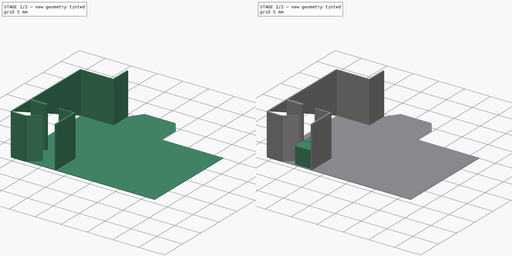
[diagram: build sequence overview — one tinted view per stage of 2, left to right]
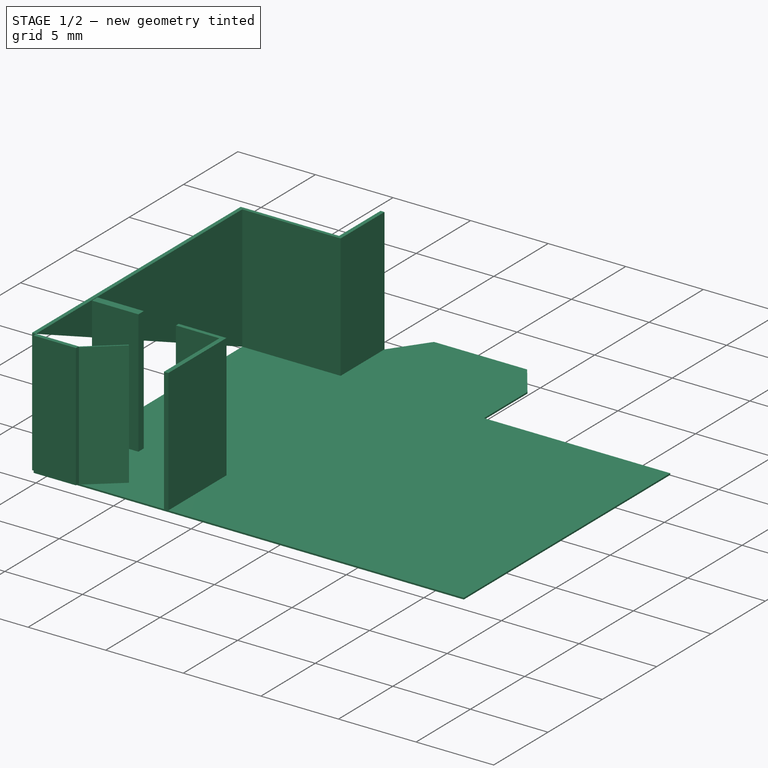
[diagram: stage 1 of 2 — iso view after this stage's code; geometry added in this stage tinted green]
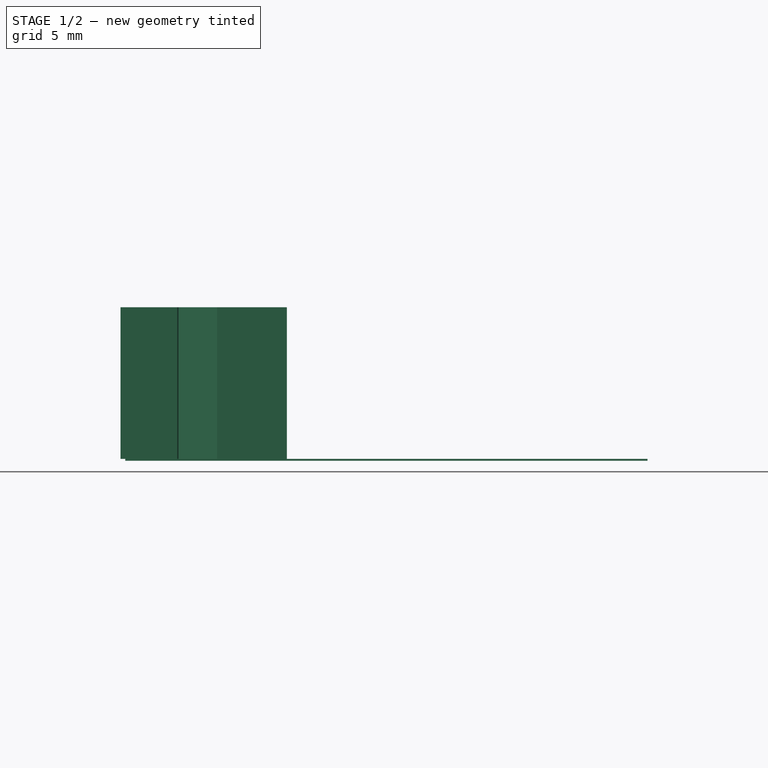
[diagram: stage 1 of 2 — front view after this stage's code; geometry added in this stage tinted green]
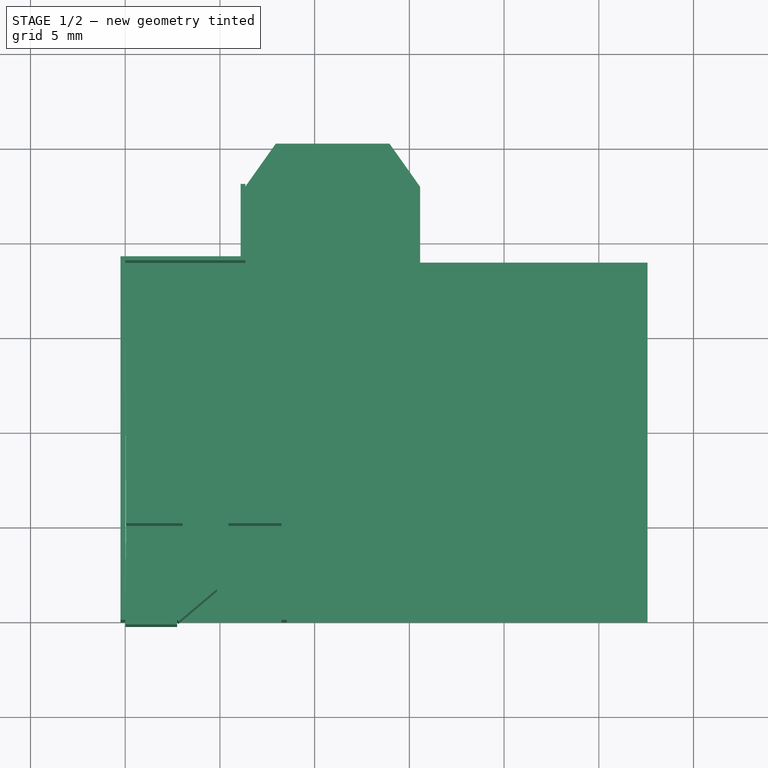
[diagram: stage 1 of 2 — top view after this stage's code; geometry added in this stage tinted green]
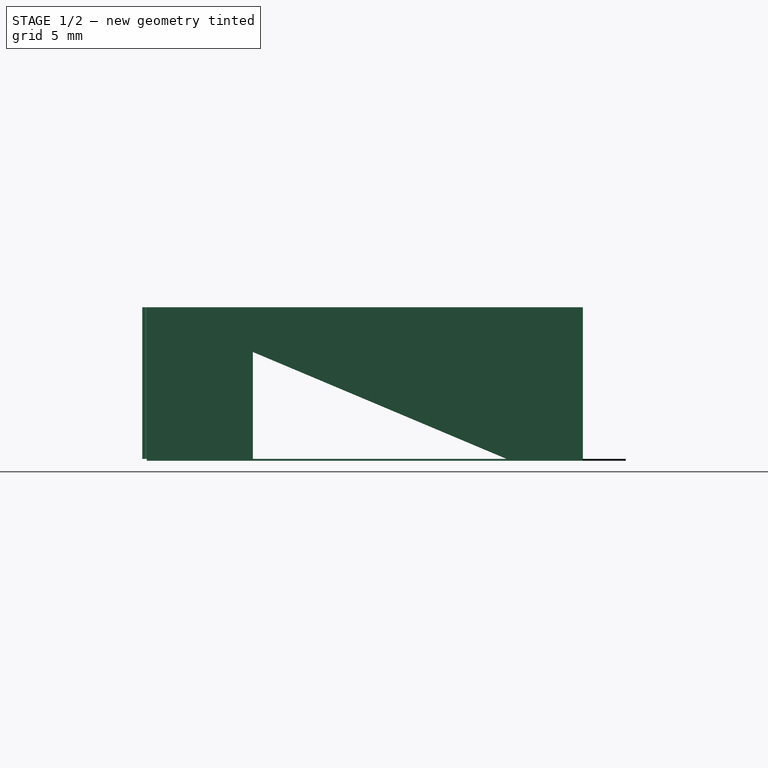
[diagram: stage 1 of 2 — right view after this stage's code; geometry added in this stage tinted green]
FCSTD DOCUMENT  (FreeCAD 0.16R)
Label: Before
License: All rights reserved
LicenseURL: http://en.wikipedia.org/wiki/All_rights_reserved
objects: Sketcher::SketchObject×5, PartDesign::Pad×4
note: 13 computed .brp shape members not serialized (recipe doc carries the construction recipe); baked Part::Feature solids carry a one-line shape summary decoded from their .brp

FEATURE [Sketcher::SketchObject] Sketch
  sketch-geometry (10):
    g0: LineSegment StartX=0 StartY=0 StartZ=0 EndX=0 EndY=19 EndZ=0
    g1: LineSegment StartX=0 StartY=19 StartZ=0 EndX=6.33 EndY=19 EndZ=0
    g2: LineSegment StartX=6.33 StartY=19 StartZ=0 EndX=6.33 EndY=23 EndZ=0
    g3: LineSegment StartX=6.33 StartY=23 StartZ=0 EndX=7.95 EndY=25.2838 EndZ=0
    g4: LineSegment StartX=7.95 StartY=25.2838 StartZ=0 EndX=13.95 EndY=25.2838 EndZ=0
    g5: LineSegment StartX=15.57 StartY=23 StartZ=0 EndX=15.57 EndY=19 EndZ=0
    g6: LineSegment StartX=15.57 StartY=19 StartZ=0 EndX=27.57 EndY=19 EndZ=0
    g7: LineSegment StartX=27.57 StartY=19 StartZ=0 EndX=27.57 EndY=0 EndZ=0
    g8: LineSegment StartX=27.57 StartY=0 StartZ=0 EndX=0 EndY=0 EndZ=0
    g9: LineSegment StartX=13.95 StartY=25.2838 StartZ=0 EndX=15.57 EndY=23 EndZ=0
  constraints (29):
    c: Coincident(g-1,g0)
    c: PointOnObject(g0,g-2)
    c: Coincident(g0,g1)
    c: Coincident(g1,g2)
    c: Coincident(g2,g3)
    c: Coincident(g3,g4)
    c: Coincident(g5,g6)
    c: Horizontal(g6)
    c: Coincident(g6,g7)
    c: Coincident(g7,g8)
    c: Coincident(g8,g0)
    c: Horizontal(g8)
    c: Horizontal(g1)
    c: Vertical(g2)
    c: Vertical(g5)
    c: Distance(g0) = 19
    c: Distance(g1) = 6.33
    c: Distance(g2) = 4
    c: Distance(g3) = 2.8
    c: Distance(g4) = 6
    c: Horizontal(g4)
    c: Coincident(g9,g5)
    c: Coincident(g9,g4)
    c: Equal(g3,g9)
    c: Equal(g5,g2)
    c: Vertical(g7)
    c: DistanceY(g5) = 19
    c: Distance(g5,g1) = 9.24
    c: Distance(g6) = 12
FEATURE [PartDesign::Pad] Pad
  Length = 0.1
  Length2 = 100
  Sketch = -> Sketch
  Type = 0
FEATURE [Sketcher::SketchObject] Sketch001
  Placement = pos=(0,0,0.1) rot=(0,0,1;0rad)
  Support = -> Pad [Face12]
  sketch-geometry (27):
    g0: LineSegment StartX=8.00025 StartY=0.241803 StartZ=0 EndX=5.20025 EndY=0.241803 EndZ=0
    g1: LineSegment StartX=0 StartY=18.9871 StartZ=0 EndX=0 EndY=0 EndZ=0
    g2: LineSegment StartX=0 StartY=0 StartZ=0 EndX=-0.247297 EndY=0 EndZ=0
    g3: LineSegment StartX=-0.247297 StartY=0 StartZ=0 EndX=-0.247297 EndY=19.2002 EndZ=0
    g4: LineSegment StartX=-0.247297 StartY=19.2002 StartZ=0 EndX=6.09069 EndY=19.2002 EndZ=0
    g5: LineSegment StartX=6.34069 StartY=18.9871 StartZ=0 EndX=0 EndY=18.9871 EndZ=0
    g6: LineSegment StartX=8.25 StartY=5.1 StartZ=0 EndX=8.25 EndY=0 EndZ=0
    g7: LineSegment StartX=8.25 StartY=0 StartZ=0 EndX=8.53236 EndY=0 EndZ=0
    g8: LineSegment StartX=8.53236 StartY=0 StartZ=0 EndX=8.53236 EndY=5.35 EndZ=0
    g9: LineSegment StartX=2.75 StartY=0 StartZ=0 EndX=4.78529 EndY=1.71265 EndZ=0
    g10: LineSegment StartX=4.78529 StartY=1.71265 StartZ=0 EndX=4.84968 EndY=1.63614 EndZ=0
    g11: LineSegment StartX=4.84968 StartY=1.63614 StartZ=0 EndX=2.81439 EndY=-0.0765148 EndZ=0
    g12: LineSegment StartX=2.81439 StartY=-0.0765148 StartZ=0 EndX=2.75 EndY=0 EndZ=0
    g13: LineSegment StartX=6.09069 StartY=23.0192 StartZ=0 EndX=6.34069 EndY=23.0192 EndZ=0
    g14: LineSegment StartX=6.34069 StartY=23.0192 StartZ=0 EndX=6.34069 EndY=18.9871 EndZ=0
    g15: LineSegment StartX=6.09069 StartY=19.2002 StartZ=0 EndX=6.09069 EndY=23.0192 EndZ=0
    g16: LineSegment StartX=5.45 StartY=5.35 StartZ=0 EndX=8.53236 EndY=5.35 EndZ=0
    g17: LineSegment StartX=8.25 StartY=5.1 StartZ=0 EndX=5.45 EndY=5.1 EndZ=0
    g18: LineSegment StartX=5.45 StartY=5.1 StartZ=0 EndX=5.45 EndY=5.35 EndZ=0
    g19: LineSegment StartX=0.039489 StartY=5.6 StartZ=0 EndX=3.03158 EndY=5.6 EndZ=0
    g20: LineSegment StartX=3.03158 StartY=5.6 StartZ=0 EndX=3.03158 EndY=5.1 EndZ=0
    g21: LineSegment StartX=3.03158 StartY=5.1 StartZ=0 EndX=0.039489 EndY=5.1 EndZ=0
    g22: LineSegment StartX=0.039489 StartY=5.1 StartZ=0 EndX=0.039489 EndY=5.6 EndZ=0
    g23: LineSegment StartX=0.021772 StartY=0.013487 StartZ=0 EndX=2.73998 EndY=0.013487 EndZ=0
    g24: LineSegment StartX=2.73998 StartY=0.013487 StartZ=0 EndX=2.73998 EndY=-0.236513 EndZ=0
    g25: LineSegment StartX=2.73998 StartY=-0.236513 StartZ=0 EndX=0.021772 EndY=-0.236513 EndZ=0
    g26: LineSegment StartX=0.021772 StartY=-0.236513 StartZ=0 EndX=0.021772 EndY=0.013487 EndZ=0
  constraints (67):
    c: Horizontal(g0)
    c: Coincident(g1,g2)
    c: Coincident(g2,g3)
    c: Horizontal(g2)
    c: Vertical(g1)
    c: Vertical(g3)
    c: Horizontal(g4)
    c: Horizontal(g5)
    c: Coincident(g6,g7)
    c: Coincident(g7,g8)
    c: Horizontal(g7)
    c: Vertical(g6)
    c: Vertical(g8)
    c: Coincident(g9,g10)
    c: Coincident(g10,g11)
    c: Coincident(g11,g12)
    c: Coincident(g12,g9)
    c: PointOnObject(g9,g-1)
    c: Distance(g12) = 0.1
    c: Parallel(g11,g9)
    c: Equal(g11,g9)
    c: Perpendicular(g12,g9,g9) = 4.71239
    c: DistanceX(g9) = 2.75
    c: Distance(g9) = 2.66
    c: PointOnObject(g6,g-1)
    c: DistanceX(g6) = 8.25
    c: Coincident(g1,g-1)
    c: Coincident(g13,g14)
    c: Coincident(g15,g13)
    c: Horizontal(g13)
    c: Vertical(g14)
    c: Vertical(g15)
    c: Distance(g13) = 0.25
    c: PointOnObject(g4,g15)
    c: Coincident(g17,g18)
    c: Coincident(g18,g16)
    c: Horizontal(g16)
    c: Horizontal(g17)
    c: Vertical(g18)
    c: Distance(g18) = 0.25
    c: DistanceX(g17,g6) = 2.8
    c: Coincident(g8,g16)
    c: Coincident(g17,g6)
    c: Distance(g8) = 5.35
    c: Coincident(g1,g5)
    c: Coincident(g4,g3)
    c: Coincident(g15,g4)
    c: Coincident(g5,g14)
    c: Coincident(g19,g20)
    c: Coincident(g20,g21)
    c: Coincident(g21,g22)
    c: Coincident(g22,g19)
    c: Horizontal(g19)
    c: Horizontal(g21)
    c: Vertical(g20)
    c: Vertical(g22)
    c: Distance(g20) = 0.5
    c: DistanceY(g21) = 5.1
    c: Coincident(g23,g24)
    c: Coincident(g24,g25)
    c: Coincident(g25,g26)
    c: Coincident(g26,g23)
    c: Horizontal(g23)
    c: Horizontal(g25)
    c: Vertical(g24)
    c: Vertical(g26)
    c: Distance(g26) = 0.25
FEATURE [PartDesign::Pad] Pad001
  Length = 8
  Length2 = 100
  Sketch = -> Sketch001
  Type = 0
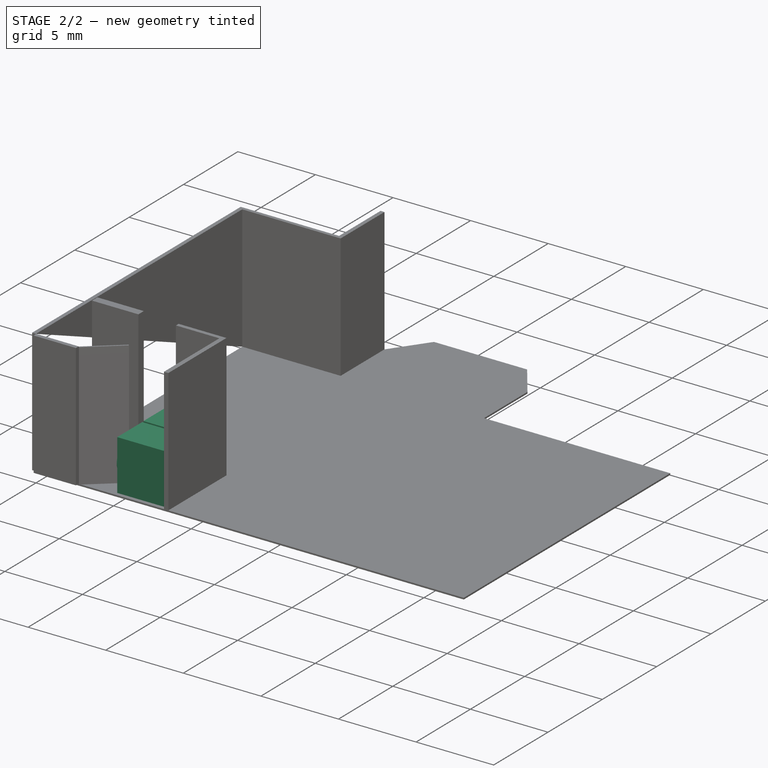
[diagram: stage 2 of 2 — iso view after this stage's code; geometry added in this stage tinted green]
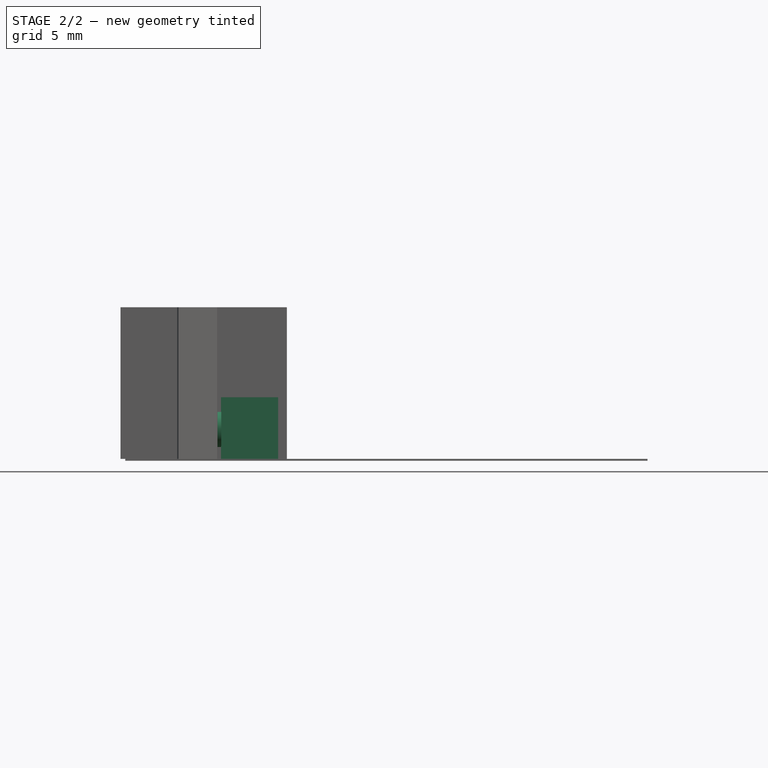
[diagram: stage 2 of 2 — front view after this stage's code; geometry added in this stage tinted green]
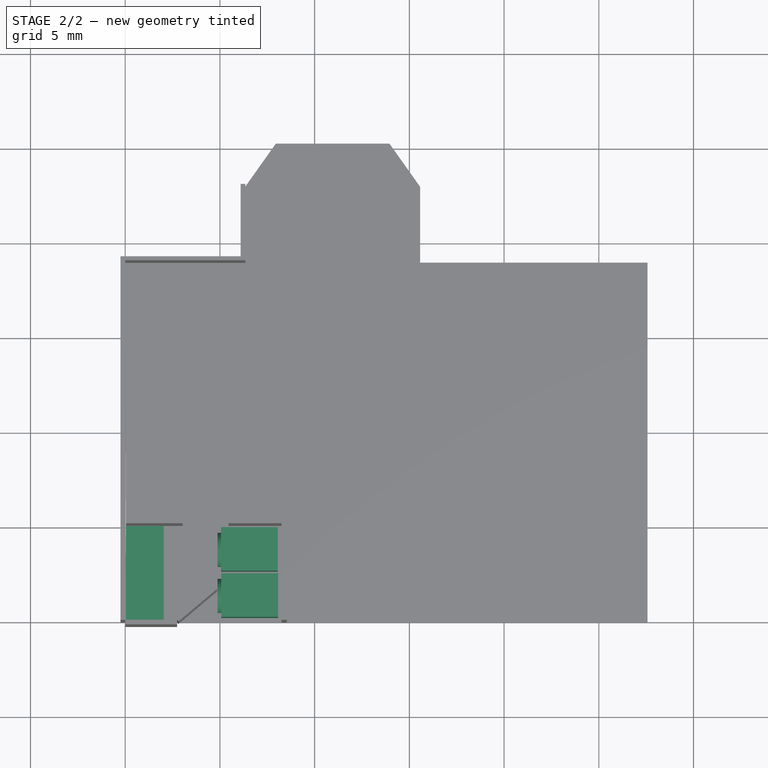
[diagram: stage 2 of 2 — top view after this stage's code; geometry added in this stage tinted green]
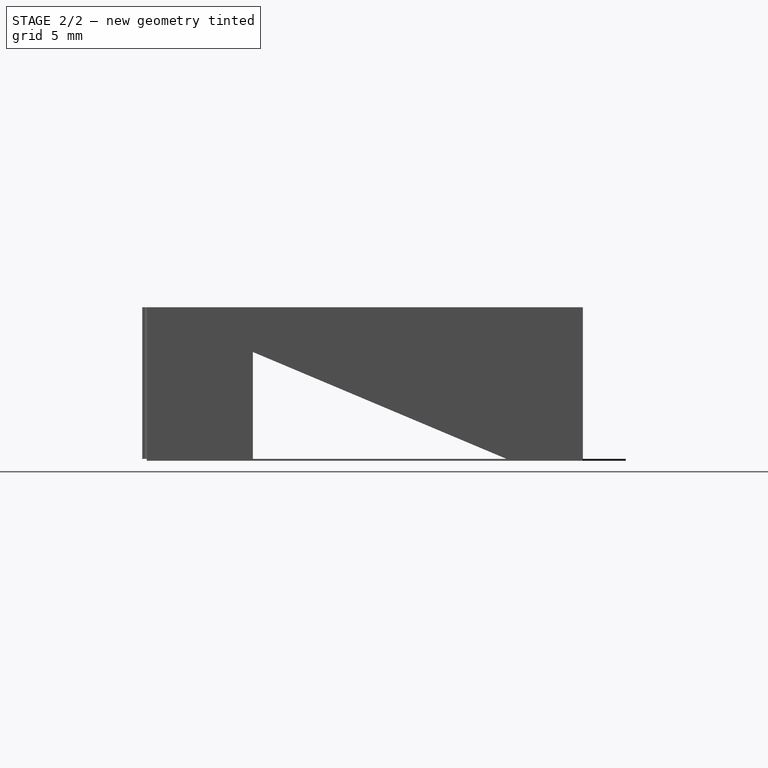
[diagram: stage 2 of 2 — right view after this stage's code; geometry added in this stage tinted green]
FEATURE [Sketcher::SketchObject] Sketch003
  Placement = pos=(0,0,0.1) rot=(0,0,1;0rad)
  Support = -> Pad001 [Face13]
  sketch-geometry (20):
    g0: LineSegment StartX=5.05546 StartY=4.98242 StartZ=0 EndX=8.05546 EndY=4.98242 EndZ=0
    g1: LineSegment StartX=8.05546 StartY=4.98242 StartZ=0 EndX=8.05546 EndY=2.68242 EndZ=0
    g2: LineSegment StartX=8.05546 StartY=2.68242 StartZ=0 EndX=5.05546 EndY=2.68242 EndZ=0
    g3: LineSegment StartX=5.05546 StartY=2.68242 StartZ=0 EndX=5.05546 EndY=4.98242 EndZ=0
    g4: LineSegment StartX=5.07096 StartY=2.5418 StartZ=0 EndX=8.07096 EndY=2.5418 EndZ=0
    g5: LineSegment StartX=8.07096 StartY=2.5418 StartZ=0 EndX=8.07096 EndY=0.241803 EndZ=0
    g6: LineSegment StartX=8.07096 StartY=0.241803 StartZ=0 EndX=5.07096 EndY=0.241803 EndZ=0
    g7: LineSegment StartX=5.07096 StartY=0.241803 StartZ=0 EndX=5.07096 EndY=2.5418 EndZ=0
    g8: LineSegment StartX=0.036032 StartY=5.04222 StartZ=0 EndX=2.03603 EndY=5.04222 EndZ=0
    g9: LineSegment StartX=2.03603 StartY=5.04222 StartZ=0 EndX=2.03603 EndY=0.061943 EndZ=0
    g10: LineSegment StartX=2.03603 StartY=0.061943 StartZ=0 EndX=0.036032 EndY=0.061943 EndZ=0
    g11: LineSegment StartX=0.036032 StartY=0.061943 StartZ=0 EndX=0.036032 EndY=5.04222 EndZ=0
    g12: LineSegment StartX=8.5 StartY=5.1 StartZ=0 EndX=8.25 EndY=5.1 EndZ=0
    g13: LineSegment StartX=8.25 StartY=5.1 StartZ=0 EndX=8.25 EndY=0 EndZ=0
    g14: LineSegment StartX=8.25 StartY=0 StartZ=0 EndX=8.5 EndY=0 EndZ=0
    g15: LineSegment StartX=8.5 StartY=0 StartZ=0 EndX=8.5 EndY=5.1 EndZ=0
    g16: LineSegment StartX=2.75 StartY=0 StartZ=0 EndX=4.78529 EndY=1.71265 EndZ=0
    g17: LineSegment StartX=4.78529 StartY=1.71265 StartZ=0 EndX=4.84968 EndY=1.63614 EndZ=0
    g18: LineSegment StartX=4.84968 StartY=1.63614 StartZ=0 EndX=2.81439 EndY=-0.0765148 EndZ=0
    g19: LineSegment StartX=2.81439 StartY=-0.0765148 StartZ=0 EndX=2.75 EndY=0 EndZ=0
  constraints (52):
    c: Coincident(g0,g1)
    c: Coincident(g1,g2)
    c: Coincident(g2,g3)
    c: Coincident(g3,g0)
    c: Horizontal(g0)
    c: Horizontal(g2)
    c: Vertical(g1)
    c: Vertical(g3)
    c: Coincident(g4,g5)
    c: Coincident(g5,g6)
    c: Coincident(g6,g7)
    c: Coincident(g7,g4)
    c: Horizontal(g4)
    c: Horizontal(g6)
    c: Vertical(g5)
    c: Vertical(g7)
    c: Coincident(g8,g9)
    c: Coincident(g9,g10)
    c: Coincident(g10,g11)
    c: Coincident(g11,g8)
    c: Horizontal(g8)
    c: Horizontal(g10)
    c: Vertical(g9)
    c: Vertical(g11)
    c: Coincident(g12,g13)
    c: Coincident(g13,g14)
    c: Coincident(g14,g15)
    c: Coincident(g15,g12)
    c: Horizontal(g12)
    c: Horizontal(g14)
    c: Vertical(g13)
    c: Vertical(g15)
    c: Coincident(g16,g17)
    c: Coincident(g17,g18)
    c: Coincident(g18,g19)
    c: Coincident(g19,g16)
    c: Distance(g0) = 3
    c: Distance(g4) = 3
    c: Distance(g3) = 2.3
    c: PointOnObject(g16,g-1)
    c: Distance(g19) = 0.1
    c: Parallel(g18,g16)
    c: Equal(g18,g16)
    c: Perpendicular(g19,g16,g16) = 4.71239
    c: DistanceX(g16) = 2.75
    c: Distance(g16) = 2.66
    c: Distance(g13) = 5.1
    c: Distance(g12) = 0.25
    c: PointOnObject(g13,g-1)
    c: DistanceX(g13) = 8.25
    c: Equal(g7,g3)
    c: Distance(g8) = 2
FEATURE [PartDesign::Pad] Pad002
  Length = 3.25
  Length2 = 100
  Sketch = -> Sketch003
  Type = 0
FEATURE [Sketcher::SketchObject] Sketch004
  Placement = pos=(5.07096,0,0) rot=(0.57735,-0.57735,-0.57735;2.0944rad)
  Support = -> Pad002 [Face36]
  sketch-geometry (2):
    g0: Circle CenterX=-3.80463 CenterY=1.62715 CenterZ=0 NormalX=0 NormalY=0 NormalZ=1 Radius=0.9
    g1: Circle CenterX=-1.37671 CenterY=1.67994 CenterZ=0 NormalX=0 NormalY=0 NormalZ=1 Radius=0.9
  constraints (2):
    c: Radius(g1) = 0.9
    c: Equal(g1,g0)
FEATURE [PartDesign::Pad] Pad003
  Length = 0.2
  Length2 = 100
  Sketch = -> Sketch004
  Type = 0
FEATURE [Sketcher::SketchObject] Sketch005
  Placement = pos=(0,0,0.1) rot=(0,0,1;0rad)
  Support = -> Pad003 [Face13]
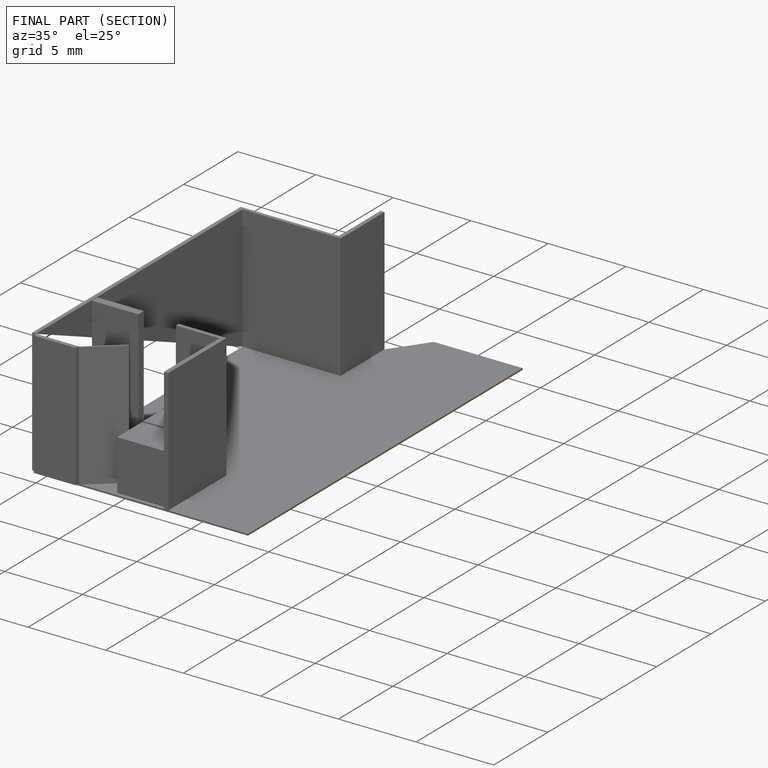
[diagram: finished part — half-section view (interior)]
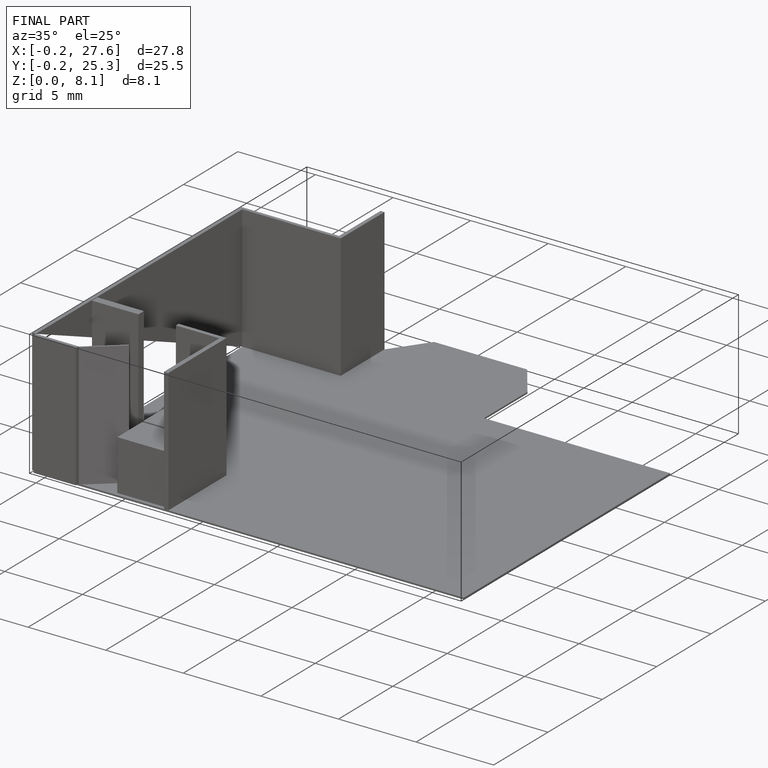
[diagram: finished part — iso view with bounding-box wireframe]
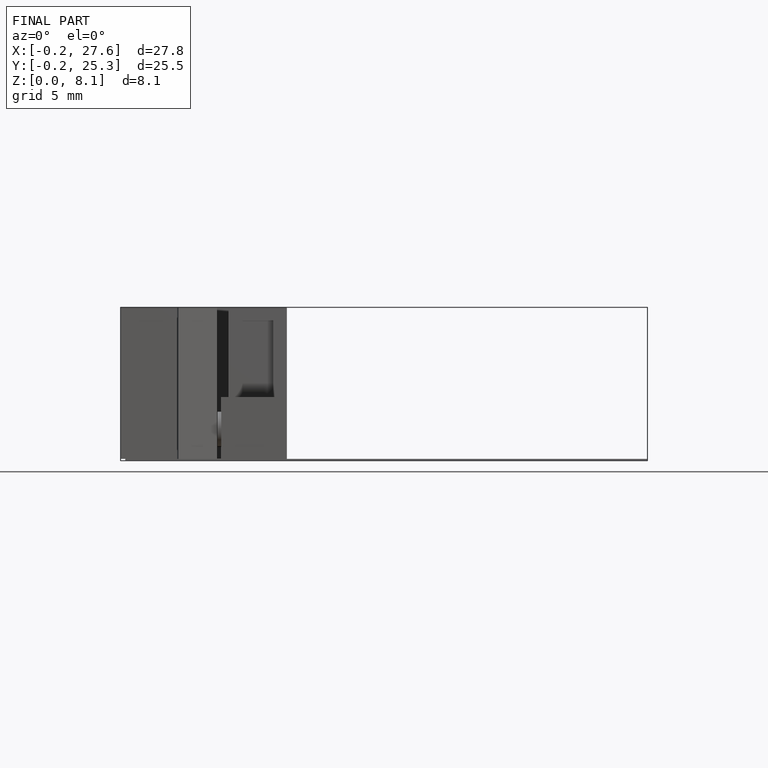
[diagram: finished part — front view with bounding-box wireframe]
